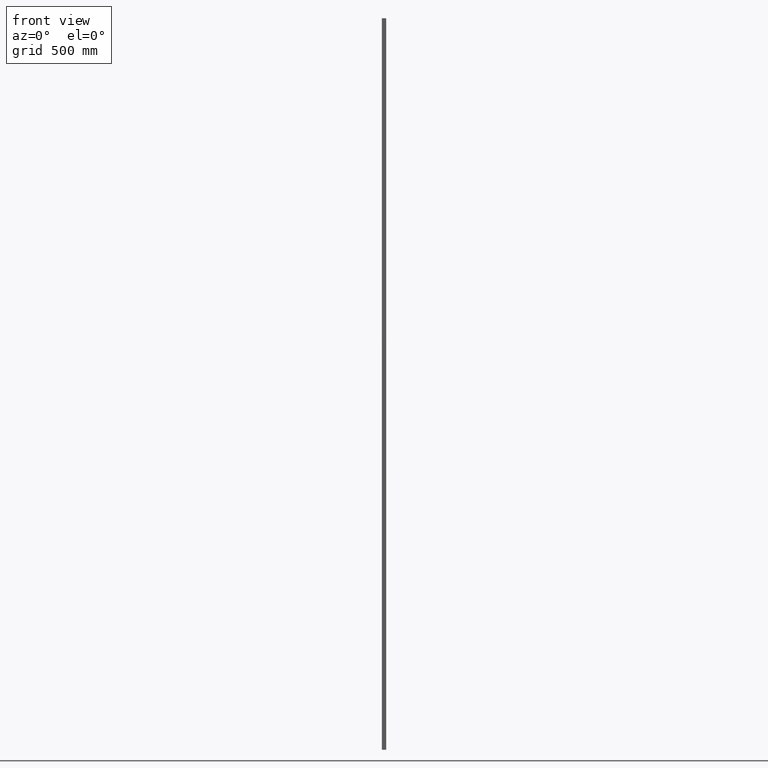
[diagram: clean part render]
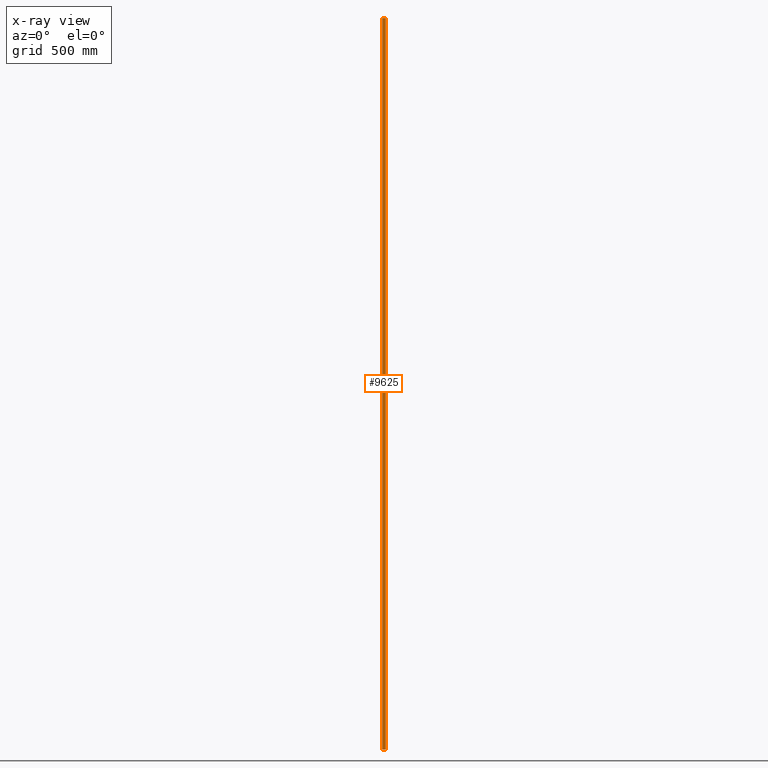
[diagram: x-ray — body ghosted, one internal face saturated and labeled with its STEP entity id]
A machine part, front view, then the same camera in x-ray: the body is ghosted and one INTERNAL B-rep face — a face not visible from any outside direction — is saturated and labeled: STEP entity #9625.
In plain terms, the highlighted planar face has unit normal (0, -1, 0).
Its self-contained STEP definition (entity closure, byte-faithful):
#137 = VERTEX_POINT ( 'NONE', #2899 ) ;
#712 = CARTESIAN_POINT ( 'NONE',  ( -6.550000000000000711, 6.000000000000000000, 1500.000000000000000 ) ) ;
#1761 = CARTESIAN_POINT ( 'NONE',  ( -6.550000000000000711, 6.000000000000000000, -1500.000000000000000 ) ) ;
#2217 = CARTESIAN_POINT ( 'NONE',  ( 6.550000000000000711, 6.000000000000000000, 1500.000000000000000 ) ) ;
#2374 = DIRECTION ( 'NONE',  ( 0.000000000000000000, -0.000000000000000000, -1.000000000000000000 ) ) ;
#2384 = CARTESIAN_POINT ( 'NONE',  ( -6.550000000000000711, 6.000000000000000000, 1500.000000000000000 ) ) ;
#2428 = CARTESIAN_POINT ( 'NONE',  ( -6.550000000000000711, 6.000000000000000000, 1500.000000000000000 ) ) ;
#2899 = CARTESIAN_POINT ( 'NONE',  ( 6.550000000000000711, 6.000000000000000000, 1500.000000000000000 ) ) ;
#3034 = VECTOR ( 'NONE', #13453, 1000.000000000000000 ) ;
#4159 = VECTOR ( 'NONE', #12989, 1000.000000000000000 ) ;
#6377 = ORIENTED_EDGE ( 'NONE', *, *, #13450, .F. ) ;
#6660 = VERTEX_POINT ( 'NONE', #9010 ) ;
#6981 = LINE ( 'NONE', #2217, #4159 ) ;
#8029 = PLANE ( 'NONE',  #8849 ) ;
#8295 = LINE ( 'NONE', #712, #8492 ) ;
#8492 = VECTOR ( 'NONE', #11872, 1000.000000000000000 ) ;
#8849 = AXIS2_PLACEMENT_3D ( 'NONE', #17448, #9401, #2374 ) ;
#8954 = EDGE_CURVE ( 'NONE', #15065, #6660, #16683, .T. ) ;
#9010 = CARTESIAN_POINT ( 'NONE',  ( -6.550000000000000711, 6.000000000000000000, -1500.000000000000000 ) ) ;
#9140 = EDGE_CURVE ( 'NONE', #137, #15065, #6981, .T. ) ;
#9373 = EDGE_LOOP ( 'NONE', ( #9818, #6377, #14553, #11869 ) ) ;
#9401 = DIRECTION ( 'NONE',  ( 0.000000000000000000, -1.000000000000000000, 0.000000000000000000 ) ) ;
#9625 = ADVANCED_FACE ( 'NONE', ( #17103 ), #8029, .F. ) ;
#9818 = ORIENTED_EDGE ( 'NONE', *, *, #8954, .T. ) ;
#10054 = EDGE_CURVE ( 'NONE', #137, #14955, #8295, .T. ) ;
#10668 = VECTOR ( 'NONE', #11524, 1000.000000000000000 ) ;
#10833 = LINE ( 'NONE', #2428, #3034 ) ;
#11524 = DIRECTION ( 'NONE',  ( -1.000000000000000000, -0.000000000000000000, -0.000000000000000000 ) ) ;
#11869 = ORIENTED_EDGE ( 'NONE', *, *, #9140, .T. ) ;
#11872 = DIRECTION ( 'NONE',  ( -1.000000000000000000, -0.000000000000000000, -0.000000000000000000 ) ) ;
#12841 = CARTESIAN_POINT ( 'NONE',  ( 6.550000000000000711, 6.000000000000000000, -1500.000000000000000 ) ) ;
#12989 = DIRECTION ( 'NONE',  ( -0.000000000000000000, -0.000000000000000000, -1.000000000000000000 ) ) ;
#13450 = EDGE_CURVE ( 'NONE', #14955, #6660, #10833, .T. ) ;
#13453 = DIRECTION ( 'NONE',  ( -0.000000000000000000, -0.000000000000000000, -1.000000000000000000 ) ) ;
#14553 = ORIENTED_EDGE ( 'NONE', *, *, #10054, .F. ) ;
#14955 = VERTEX_POINT ( 'NONE', #2384 ) ;
#15065 = VERTEX_POINT ( 'NONE', #12841 ) ;
#16683 = LINE ( 'NONE', #1761, #10668 ) ;
#17103 = FACE_OUTER_BOUND ( 'NONE', #9373, .T. ) ;
#17448 = CARTESIAN_POINT ( 'NONE',  ( -6.550000000000000711, 6.000000000000000000, 1500.000000000000000 ) ) ;